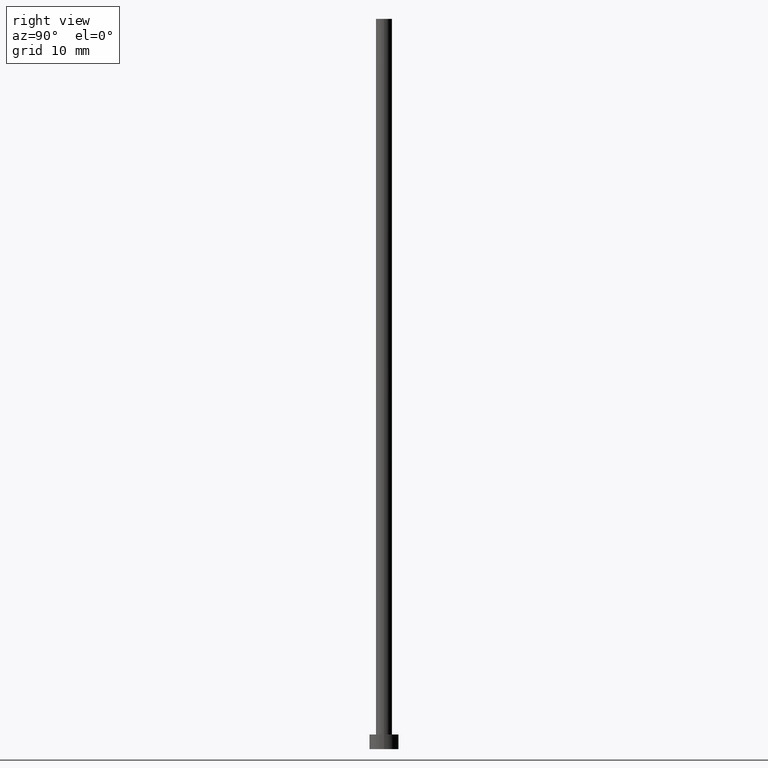
[diagram: clean part render]
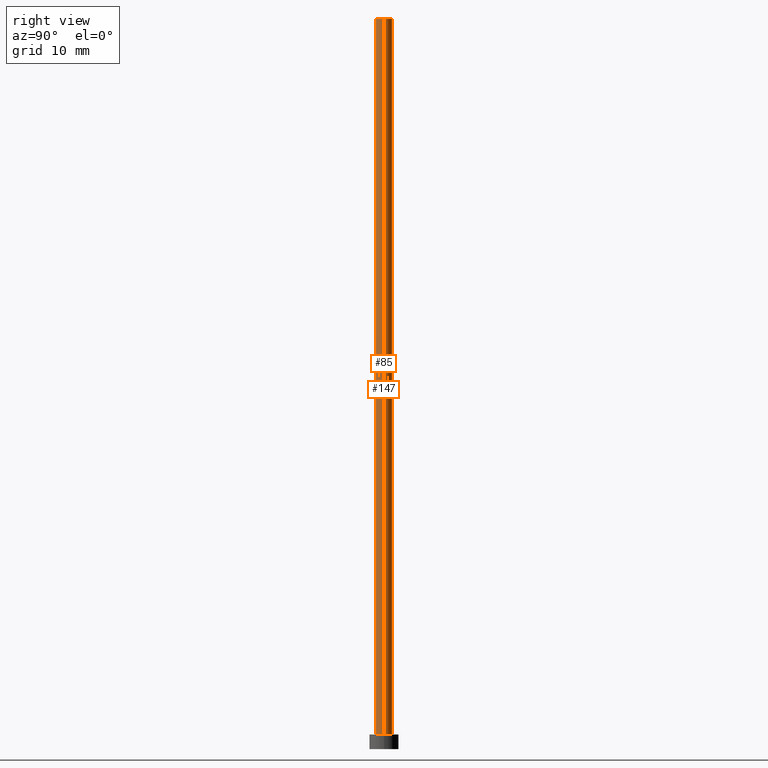
[diagram: same view with one multi-face feature highlighted, each face labeled with its STEP entity id]
A machine part, right view. The highlighted faces form ONE feature: a constant-radius fillet chain: 2 tangent blend faces with common blend radius 1.1 mm. The faces share edges in the B-rep.
Their STEP definitions:
[1] entity #147 (Cylinder):
#4 = VECTOR ( 'NONE', #214, 1000.000000000000000 ) ;
#12 = VERTEX_POINT ( 'NONE', #84 ) ;
#16 = CIRCLE ( 'NONE', #39, 1.100000000000000089 ) ;
#24 = VECTOR ( 'NONE', #180, 1000.000000000000000 ) ;
#28 = EDGE_CURVE ( 'NONE', #12, #203, #140, .T. ) ;
#39 = AXIS2_PLACEMENT_3D ( 'NONE', #252, #55, #238 ) ;
#44 = CARTESIAN_POINT ( 'NONE',  ( -1.100000000000000089, 0.000000000000000000, 100.0000000000000000 ) ) ;
#48 = AXIS2_PLACEMENT_3D ( 'NONE', #225, #95, #109 ) ;
#50 = CARTESIAN_POINT ( 'NONE',  ( 1.100000000000000089, 1.347111479062088503E-16, 2.000000000000000000 ) ) ;
#55 = DIRECTION ( 'NONE',  ( 0.000000000000000000, 0.000000000000000000, 1.000000000000000000 ) ) ;
#61 = FACE_OUTER_BOUND ( 'NONE', #143, .T. ) ;
#68 = ORIENTED_EDGE ( 'NONE', *, *, #82, .T. ) ;
#79 = CIRCLE ( 'NONE', #129, 1.100000000000000089 ) ;
#82 = EDGE_CURVE ( 'NONE', #203, #152, #16, .T. ) ;
#84 = CARTESIAN_POINT ( 'NONE',  ( 1.100000000000000089, 1.347111479062088503E-16, 100.0000000000000000 ) ) ;
#95 = DIRECTION ( 'NONE',  ( -0.000000000000000000, -0.000000000000000000, -1.000000000000000000 ) ) ;
#108 = CYLINDRICAL_SURFACE ( 'NONE', #48, 1.100000000000000089 ) ;
#109 = DIRECTION ( 'NONE',  ( -1.000000000000000000, 0.000000000000000000, 0.000000000000000000 ) ) ;
#112 = DIRECTION ( 'NONE',  ( 1.000000000000000000, 0.000000000000000000, 0.000000000000000000 ) ) ;
#121 = EDGE_CURVE ( 'NONE', #240, #152, #202, .T. ) ;
#128 = EDGE_CURVE ( 'NONE', #12, #240, #79, .T. ) ;
#129 = AXIS2_PLACEMENT_3D ( 'NONE', #177, #136, #112 ) ;
#130 = CARTESIAN_POINT ( 'NONE',  ( 1.100000000000000089, 1.347111479062088503E-16, 100.0000000000000000 ) ) ;
#136 = DIRECTION ( 'NONE',  ( 0.000000000000000000, 0.000000000000000000, 1.000000000000000000 ) ) ;
#140 = LINE ( 'NONE', #130, #4 ) ;
#143 = EDGE_LOOP ( 'NONE', ( #245, #215, #68, #247 ) ) ;
#147 = ADVANCED_FACE ( 'NONE', ( #61 ), #108, .T. ) ;
#152 = VERTEX_POINT ( 'NONE', #205 ) ;
#177 = CARTESIAN_POINT ( 'NONE',  ( 0.000000000000000000, 0.000000000000000000, 100.0000000000000000 ) ) ;
#180 = DIRECTION ( 'NONE',  ( -0.000000000000000000, -0.000000000000000000, -1.000000000000000000 ) ) ;
#202 = LINE ( 'NONE', #44, #24 ) ;
#203 = VERTEX_POINT ( 'NONE', #50 ) ;
#205 = CARTESIAN_POINT ( 'NONE',  ( -1.100000000000000089, 0.000000000000000000, 2.000000000000000000 ) ) ;
#214 = DIRECTION ( 'NONE',  ( -0.000000000000000000, -0.000000000000000000, -1.000000000000000000 ) ) ;
#215 = ORIENTED_EDGE ( 'NONE', *, *, #28, .T. ) ;
#225 = CARTESIAN_POINT ( 'NONE',  ( 0.000000000000000000, 0.000000000000000000, 100.0000000000000000 ) ) ;
#236 = CARTESIAN_POINT ( 'NONE',  ( -1.100000000000000089, 0.000000000000000000, 100.0000000000000000 ) ) ;
#238 = DIRECTION ( 'NONE',  ( 1.000000000000000000, 0.000000000000000000, 0.000000000000000000 ) ) ;
#240 = VERTEX_POINT ( 'NONE', #236 ) ;
#245 = ORIENTED_EDGE ( 'NONE', *, *, #128, .F. ) ;
#247 = ORIENTED_EDGE ( 'NONE', *, *, #121, .F. ) ;
#252 = CARTESIAN_POINT ( 'NONE',  ( 0.000000000000000000, 0.000000000000000000, 2.000000000000000000 ) ) ;
[2] entity #85 (Cylinder):
#4 = VECTOR ( 'NONE', #214, 1000.000000000000000 ) ;
#5 = ORIENTED_EDGE ( 'NONE', *, *, #99, .T. ) ;
#11 = AXIS2_PLACEMENT_3D ( 'NONE', #168, #251, #218 ) ;
#12 = VERTEX_POINT ( 'NONE', #84 ) ;
#24 = VECTOR ( 'NONE', #180, 1000.000000000000000 ) ;
#27 = EDGE_LOOP ( 'NONE', ( #65, #233, #246, #5 ) ) ;
#28 = EDGE_CURVE ( 'NONE', #12, #203, #140, .T. ) ;
#44 = CARTESIAN_POINT ( 'NONE',  ( -1.100000000000000089, 0.000000000000000000, 100.0000000000000000 ) ) ;
#50 = CARTESIAN_POINT ( 'NONE',  ( 1.100000000000000089, 1.347111479062088503E-16, 2.000000000000000000 ) ) ;
#62 = EDGE_CURVE ( 'NONE', #240, #12, #119, .T. ) ;
#65 = ORIENTED_EDGE ( 'NONE', *, *, #28, .F. ) ;
#69 = DIRECTION ( 'NONE',  ( -0.000000000000000000, -0.000000000000000000, -1.000000000000000000 ) ) ;
#84 = CARTESIAN_POINT ( 'NONE',  ( 1.100000000000000089, 1.347111479062088503E-16, 100.0000000000000000 ) ) ;
#85 = ADVANCED_FACE ( 'NONE', ( #92 ), #123, .T. ) ;
#87 = CARTESIAN_POINT ( 'NONE',  ( 0.000000000000000000, 0.000000000000000000, 2.000000000000000000 ) ) ;
#92 = FACE_OUTER_BOUND ( 'NONE', #27, .T. ) ;
#99 = EDGE_CURVE ( 'NONE', #152, #203, #167, .T. ) ;
#103 = CARTESIAN_POINT ( 'NONE',  ( 0.000000000000000000, 0.000000000000000000, 100.0000000000000000 ) ) ;
#119 = CIRCLE ( 'NONE', #11, 1.100000000000000089 ) ;
#121 = EDGE_CURVE ( 'NONE', #240, #152, #202, .T. ) ;
#123 = CYLINDRICAL_SURFACE ( 'NONE', #156, 1.100000000000000089 ) ;
#130 = CARTESIAN_POINT ( 'NONE',  ( 1.100000000000000089, 1.347111479062088503E-16, 100.0000000000000000 ) ) ;
#140 = LINE ( 'NONE', #130, #4 ) ;
#152 = VERTEX_POINT ( 'NONE', #205 ) ;
#156 = AXIS2_PLACEMENT_3D ( 'NONE', #103, #69, #234 ) ;
#167 = CIRCLE ( 'NONE', #188, 1.100000000000000089 ) ;
#168 = CARTESIAN_POINT ( 'NONE',  ( 0.000000000000000000, 0.000000000000000000, 100.0000000000000000 ) ) ;
#170 = DIRECTION ( 'NONE',  ( 0.000000000000000000, 0.000000000000000000, 1.000000000000000000 ) ) ;
#180 = DIRECTION ( 'NONE',  ( -0.000000000000000000, -0.000000000000000000, -1.000000000000000000 ) ) ;
#188 = AXIS2_PLACEMENT_3D ( 'NONE', #87, #170, #254 ) ;
#202 = LINE ( 'NONE', #44, #24 ) ;
#203 = VERTEX_POINT ( 'NONE', #50 ) ;
#205 = CARTESIAN_POINT ( 'NONE',  ( -1.100000000000000089, 0.000000000000000000, 2.000000000000000000 ) ) ;
#214 = DIRECTION ( 'NONE',  ( -0.000000000000000000, -0.000000000000000000, -1.000000000000000000 ) ) ;
#218 = DIRECTION ( 'NONE',  ( 1.000000000000000000, 0.000000000000000000, 0.000000000000000000 ) ) ;
#233 = ORIENTED_EDGE ( 'NONE', *, *, #62, .F. ) ;
#234 = DIRECTION ( 'NONE',  ( -1.000000000000000000, 0.000000000000000000, 0.000000000000000000 ) ) ;
#236 = CARTESIAN_POINT ( 'NONE',  ( -1.100000000000000089, 0.000000000000000000, 100.0000000000000000 ) ) ;
#240 = VERTEX_POINT ( 'NONE', #236 ) ;
#246 = ORIENTED_EDGE ( 'NONE', *, *, #121, .T. ) ;
#251 = DIRECTION ( 'NONE',  ( 0.000000000000000000, 0.000000000000000000, 1.000000000000000000 ) ) ;
#254 = DIRECTION ( 'NONE',  ( 1.000000000000000000, 0.000000000000000000, 0.000000000000000000 ) ) ;